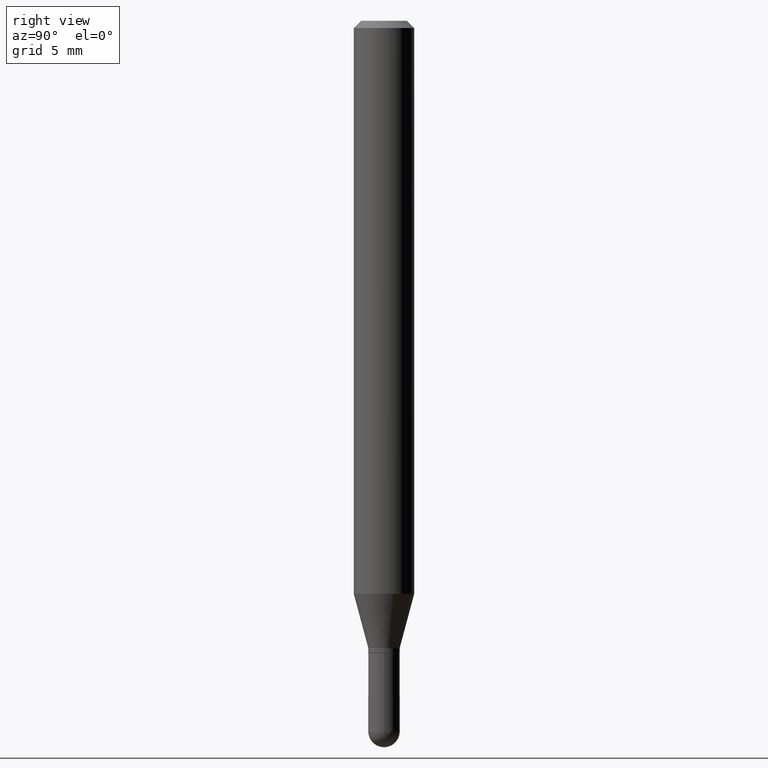
[diagram: clean part render]
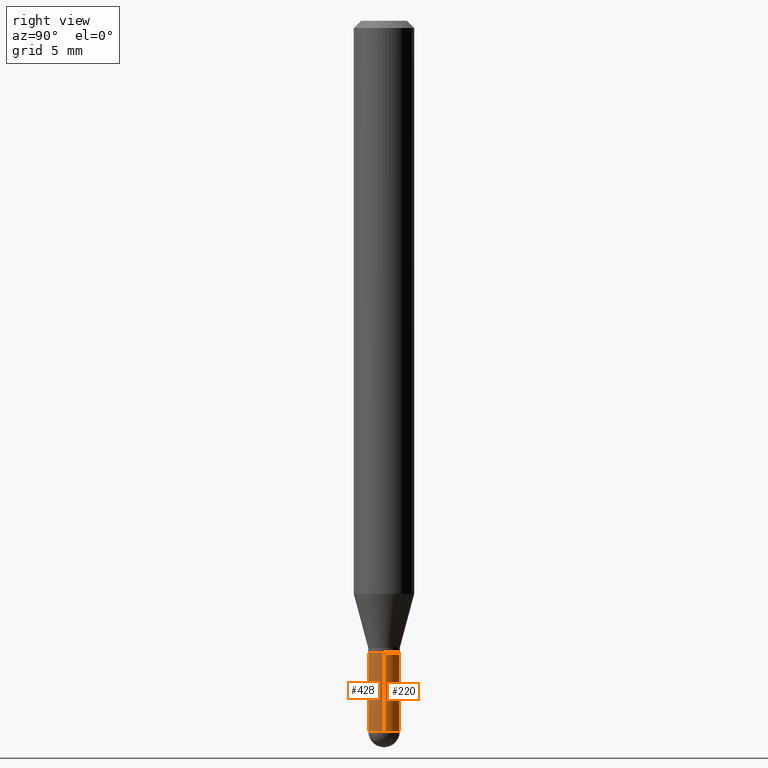
[diagram: same view with one multi-face feature highlighted, each face labeled with its STEP entity id]
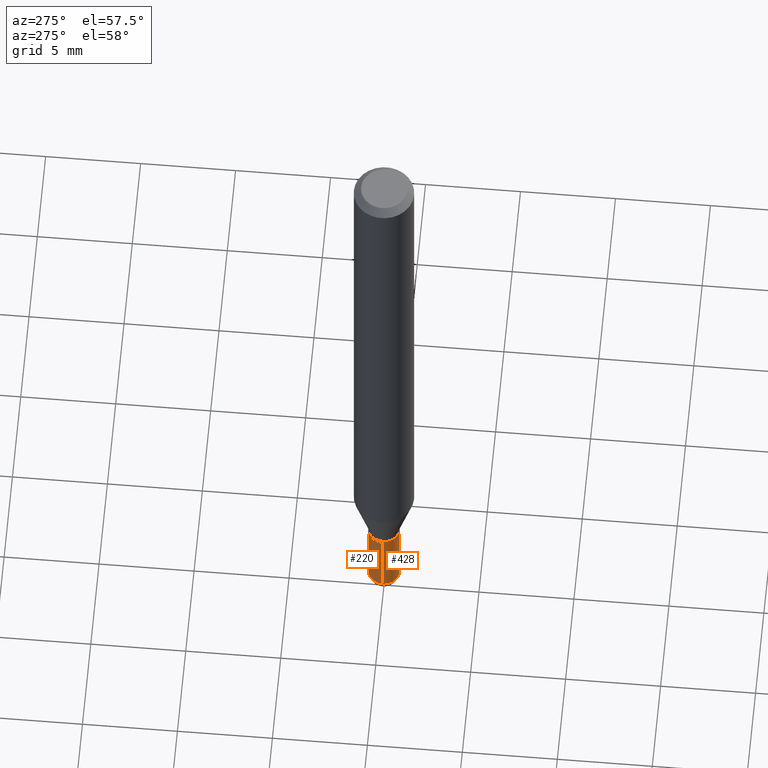
[diagram: same view with one multi-face feature highlighted, each face labeled with its STEP entity id]
A machine part, right view. The highlighted faces form ONE feature: a constant-radius fillet chain: 2 tangent blend faces with common blend radius 0.8255 mm. The faces share edges in the B-rep.
A second angle (auxiliary view) of the same feature is appended — it is thin or edge-on in the first view.
Their STEP definitions:
[1] entity #428 (Cylinder):
#6 = VERTEX_POINT ( 'NONE', #15 ) ;
#15 = CARTESIAN_POINT ( 'NONE',  ( 0.03250000000000000111, -4.783329434215109105E-15, -1.305000000000000160 ) ) ;
#18 = AXIS2_PLACEMENT_3D ( 'NONE', #465, #90, #111 ) ;
#48 = DIRECTION ( 'NONE',  ( -2.445468806185136597E-29, 3.491481338843145583E-15, 1.000000000000000000 ) ) ;
#52 = CIRCLE ( 'NONE', #402, 0.03250000000000000111 ) ;
#58 = DIRECTION ( 'NONE',  ( -2.445468806185136597E-29, 3.491481338843145583E-15, 1.000000000000000000 ) ) ;
#61 = DIRECTION ( 'NONE',  ( -2.445468806185136877E-29, 3.491481338843145188E-15, 1.000000000000000000 ) ) ;
#85 = DIRECTION ( 'NONE',  ( 1.000000000000000000, -6.982962677686258033E-15, 0.000000000000000000 ) ) ;
#88 = CIRCLE ( 'NONE', #18, 0.03250000000000000111 ) ;
#90 = DIRECTION ( 'NONE',  ( -2.445468806185136597E-29, 3.491481338843145583E-15, 1.000000000000000000 ) ) ;
#111 = DIRECTION ( 'NONE',  ( 1.000000000000000000, -6.982962677686258033E-15, 0.000000000000000000 ) ) ;
#134 = VERTEX_POINT ( 'NONE', #466 ) ;
#143 = ORIENTED_EDGE ( 'NONE', *, *, #273, .T. ) ;
#151 = DIRECTION ( 'NONE',  ( -2.445468806185136597E-29, 3.491481338843145583E-15, 1.000000000000000000 ) ) ;
#181 = VECTOR ( 'NONE', #61, 39.37007874015748143 ) ;
#206 = DIRECTION ( 'NONE',  ( 1.000000000000000000, -6.982962677686267499E-15, 4.876176775795936353E-29 ) ) ;
#210 = EDGE_CURVE ( 'NONE', #270, #6, #272, .T. ) ;
#226 = CARTESIAN_POINT ( 'NONE',  ( 0.03250000000000000111, -2.269462870248036977E-16, 1.584757452133679343E-30 ) ) ;
#229 = EDGE_CURVE ( 'NONE', #134, #6, #52, .T. ) ;
#231 = CYLINDRICAL_SURFACE ( 'NONE', #257, 0.03250000000000000111 ) ;
#232 = VERTEX_POINT ( 'NONE', #490 ) ;
#253 = CARTESIAN_POINT ( 'NONE',  ( 0.03250000000000000111, -5.067012292996114873E-15, -1.467500000000000027 ) ) ;
#257 = AXIS2_PLACEMENT_3D ( 'NONE', #335, #48, #206 ) ;
#263 = VERTEX_POINT ( 'NONE', #328 ) ;
#264 = DIRECTION ( 'NONE',  ( 1.000000000000000000, -6.982962677686258033E-15, 0.000000000000000000 ) ) ;
#270 = VERTEX_POINT ( 'NONE', #253 ) ;
#272 = LINE ( 'NONE', #226, #181 ) ;
#273 = EDGE_CURVE ( 'NONE', #232, #270, #461, .T. ) ;
#285 = AXIS2_PLACEMENT_3D ( 'NONE', #398, #151, #85 ) ;
#314 = ORIENTED_EDGE ( 'NONE', *, *, #488, .F. ) ;
#328 = CARTESIAN_POINT ( 'NONE',  ( -0.03250000000000000111, -4.609139616849279150E-15, -1.467500000000000027 ) ) ;
#333 = CARTESIAN_POINT ( 'NONE',  ( -0.03250000000000000111, 2.309263891220325683E-16, -1.598653904332844407E-30 ) ) ;
#335 = CARTESIAN_POINT ( 'NONE',  ( 0.000000000000000000, 0.000000000000000000, 0.000000000000000000 ) ) ;
#336 = CARTESIAN_POINT ( 'NONE',  ( 3.191336792071603685E-29, -4.556383147190305752E-15, -1.305000000000000160 ) ) ;
#347 = ORIENTED_EDGE ( 'NONE', *, *, #229, .F. ) ;
#370 = EDGE_CURVE ( 'NONE', #263, #232, #88, .T. ) ;
#386 = ORIENTED_EDGE ( 'NONE', *, *, #370, .T. ) ;
#392 = ORIENTED_EDGE ( 'NONE', *, *, #210, .T. ) ;
#398 = CARTESIAN_POINT ( 'NONE',  ( 3.588725473076687933E-29, -5.123748864752316500E-15, -1.467500000000000027 ) ) ;
#402 = AXIS2_PLACEMENT_3D ( 'NONE', #336, #58, #264 ) ;
#414 = EDGE_LOOP ( 'NONE', ( #314, #386, #143, #392, #347 ) ) ;
#428 = ADVANCED_FACE ( 'NONE', ( #458 ), #231, .T. ) ;
#443 = VECTOR ( 'NONE', #452, 39.37007874015748143 ) ;
#452 = DIRECTION ( 'NONE',  ( -2.445468806185136877E-29, 3.491481338843145188E-15, 1.000000000000000000 ) ) ;
#458 = FACE_OUTER_BOUND ( 'NONE', #414, .T. ) ;
#461 = CIRCLE ( 'NONE', #285, 0.03250000000000000111 ) ;
#465 = CARTESIAN_POINT ( 'NONE',  ( 3.588725473076687933E-29, -5.123748864752316500E-15, -1.467500000000000027 ) ) ;
#466 = CARTESIAN_POINT ( 'NONE',  ( -0.03250000000000000111, -4.609139616849279150E-15, -1.305000000000000160 ) ) ;
#487 = LINE ( 'NONE', #333, #443 ) ;
#488 = EDGE_CURVE ( 'NONE', #263, #134, #487, .T. ) ;
#490 = CARTESIAN_POINT ( 'NONE',  ( -2.309263891219966751E-16, -0.03250000000000512895, -1.467500000000000027 ) ) ;
[2] entity #220 (Cylinder):
#6 = VERTEX_POINT ( 'NONE', #15 ) ;
#15 = CARTESIAN_POINT ( 'NONE',  ( 0.03250000000000000111, -4.783329434215109105E-15, -1.305000000000000160 ) ) ;
#24 = DIRECTION ( 'NONE',  ( 1.000000000000000000, -6.982962677686267499E-15, 4.876176775795936353E-29 ) ) ;
#26 = CIRCLE ( 'NONE', #171, 0.03250000000000000111 ) ;
#27 = ORIENTED_EDGE ( 'NONE', *, *, #210, .F. ) ;
#43 = ORIENTED_EDGE ( 'NONE', *, *, #255, .F. ) ;
#50 = EDGE_CURVE ( 'NONE', #270, #78, #207, .T. ) ;
#61 = DIRECTION ( 'NONE',  ( -2.445468806185136877E-29, 3.491481338843145188E-15, 1.000000000000000000 ) ) ;
#76 = EDGE_CURVE ( 'NONE', #78, #263, #297, .T. ) ;
#78 = VERTEX_POINT ( 'NONE', #319 ) ;
#79 = AXIS2_PLACEMENT_3D ( 'NONE', #430, #312, #234 ) ;
#98 = CARTESIAN_POINT ( 'NONE',  ( 0.000000000000000000, 0.000000000000000000, 0.000000000000000000 ) ) ;
#134 = VERTEX_POINT ( 'NONE', #466 ) ;
#141 = ORIENTED_EDGE ( 'NONE', *, *, #76, .T. ) ;
#160 = DIRECTION ( 'NONE',  ( -2.445468806185136597E-29, 3.491481338843145583E-15, 1.000000000000000000 ) ) ;
#171 = AXIS2_PLACEMENT_3D ( 'NONE', #327, #160, #250 ) ;
#172 = CYLINDRICAL_SURFACE ( 'NONE', #345, 0.03250000000000000111 ) ;
#181 = VECTOR ( 'NONE', #61, 39.37007874015748143 ) ;
#196 = CARTESIAN_POINT ( 'NONE',  ( 3.588725473076687933E-29, -5.123748864752316500E-15, -1.467500000000000027 ) ) ;
#207 = CIRCLE ( 'NONE', #79, 0.03250000000000000111 ) ;
#210 = EDGE_CURVE ( 'NONE', #270, #6, #272, .T. ) ;
#220 = ADVANCED_FACE ( 'NONE', ( #301 ), #172, .T. ) ;
#226 = CARTESIAN_POINT ( 'NONE',  ( 0.03250000000000000111, -2.269462870248036977E-16, 1.584757452133679343E-30 ) ) ;
#234 = DIRECTION ( 'NONE',  ( 1.000000000000000000, -6.982962677686258033E-15, 0.000000000000000000 ) ) ;
#250 = DIRECTION ( 'NONE',  ( 1.000000000000000000, -6.982962677686258033E-15, 0.000000000000000000 ) ) ;
#253 = CARTESIAN_POINT ( 'NONE',  ( 0.03250000000000000111, -5.067012292996114873E-15, -1.467500000000000027 ) ) ;
#255 = EDGE_CURVE ( 'NONE', #6, #134, #26, .T. ) ;
#263 = VERTEX_POINT ( 'NONE', #328 ) ;
#270 = VERTEX_POINT ( 'NONE', #253 ) ;
#272 = LINE ( 'NONE', #226, #181 ) ;
#282 = DIRECTION ( 'NONE',  ( -2.445468806185136597E-29, 3.491481338843145583E-15, 1.000000000000000000 ) ) ;
#284 = ORIENTED_EDGE ( 'NONE', *, *, #50, .T. ) ;
#297 = CIRCLE ( 'NONE', #321, 0.03250000000000000111 ) ;
#301 = FACE_OUTER_BOUND ( 'NONE', #410, .T. ) ;
#312 = DIRECTION ( 'NONE',  ( -2.445468806185136597E-29, 3.491481338843145583E-15, 1.000000000000000000 ) ) ;
#319 = CARTESIAN_POINT ( 'NONE',  ( 2.269462870248395415E-16, 0.03249999999999488021, -1.467500000000000027 ) ) ;
#321 = AXIS2_PLACEMENT_3D ( 'NONE', #196, #282, #476 ) ;
#327 = CARTESIAN_POINT ( 'NONE',  ( 3.191336792071603685E-29, -4.556383147190305752E-15, -1.305000000000000160 ) ) ;
#328 = CARTESIAN_POINT ( 'NONE',  ( -0.03250000000000000111, -4.609139616849279150E-15, -1.467500000000000027 ) ) ;
#333 = CARTESIAN_POINT ( 'NONE',  ( -0.03250000000000000111, 2.309263891220325683E-16, -1.598653904332844407E-30 ) ) ;
#345 = AXIS2_PLACEMENT_3D ( 'NONE', #98, #378, #24 ) ;
#378 = DIRECTION ( 'NONE',  ( -2.445468806185136597E-29, 3.491481338843145583E-15, 1.000000000000000000 ) ) ;
#410 = EDGE_LOOP ( 'NONE', ( #141, #453, #43, #27, #284 ) ) ;
#430 = CARTESIAN_POINT ( 'NONE',  ( 3.588725473076687933E-29, -5.123748864752316500E-15, -1.467500000000000027 ) ) ;
#443 = VECTOR ( 'NONE', #452, 39.37007874015748143 ) ;
#452 = DIRECTION ( 'NONE',  ( -2.445468806185136877E-29, 3.491481338843145188E-15, 1.000000000000000000 ) ) ;
#453 = ORIENTED_EDGE ( 'NONE', *, *, #488, .T. ) ;
#466 = CARTESIAN_POINT ( 'NONE',  ( -0.03250000000000000111, -4.609139616849279150E-15, -1.305000000000000160 ) ) ;
#476 = DIRECTION ( 'NONE',  ( 1.000000000000000000, -6.982962677686258033E-15, 0.000000000000000000 ) ) ;
#487 = LINE ( 'NONE', #333, #443 ) ;
#488 = EDGE_CURVE ( 'NONE', #263, #134, #487, .T. ) ;